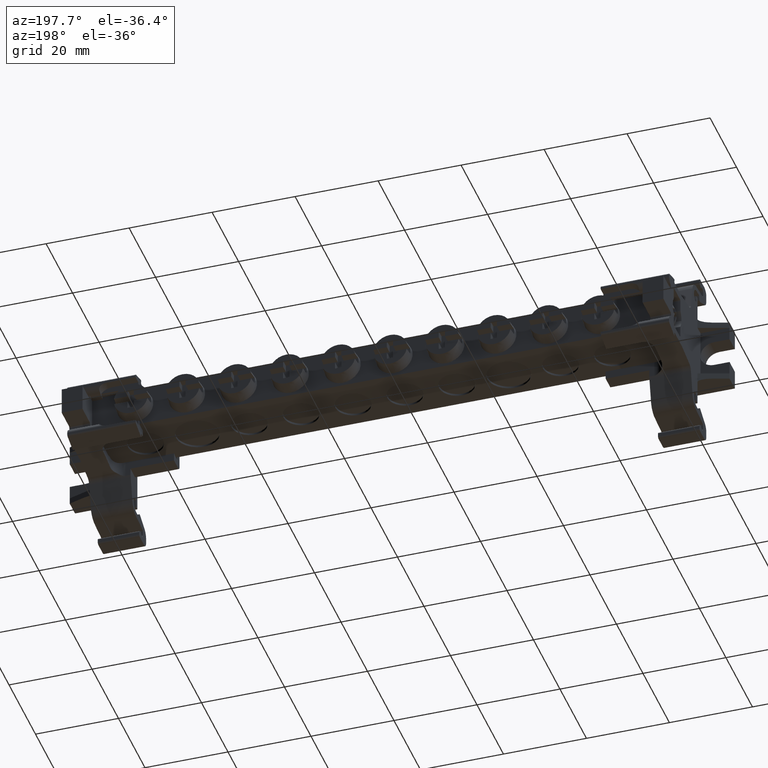
[diagram: clean part render]
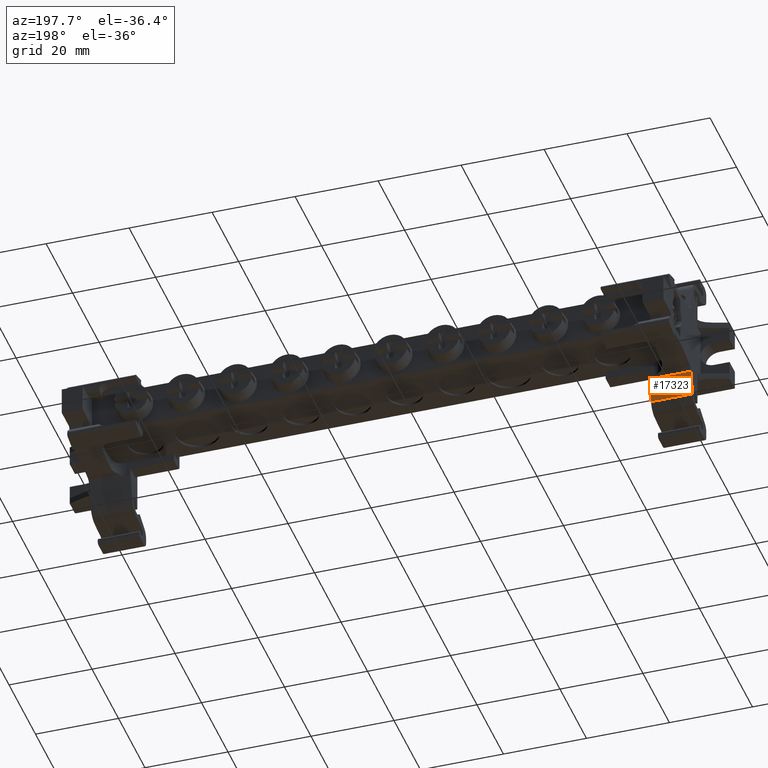
[diagram: same view with one face highlighted and labeled with its STEP entity id]
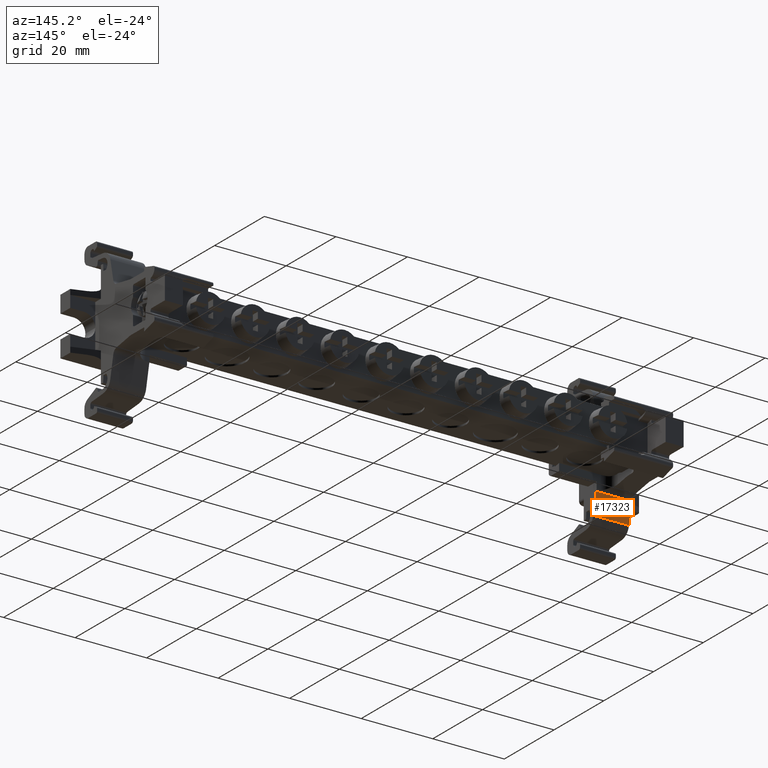
[diagram: same view with one face highlighted and labeled with its STEP entity id]
A machine part, auxiliary view. The second image highlights one B-rep face of the part: STEP entity #17323.
A second angle (auxiliary view) of the same face is appended — the face is thin or edge-on in the first view.
In plain terms, the highlighted planar face has unit normal (-0, -0.9792, 0.2031).
Its self-contained STEP definition (entity closure, byte-faithful):
#52 = AXIS2_PLACEMENT_3D ( 'NONE', #19060, #19080, #19047 ) ;
#1929 = LINE ( 'NONE', #1936, #10255 ) ;
#1936 = CARTESIAN_POINT ( 'NONE',  ( -89.95269769582409900, 47.79345559758388600, 23.06465006952839000 ) ) ;
#2044 = DIRECTION ( 'NONE',  ( 0.0000000000000000000, 0.2031293010247050000, 0.9791519223620074300 ) ) ;
#2049 = LINE ( 'NONE', #2055, #10214 ) ;
#2055 = CARTESIAN_POINT ( 'NONE',  ( -84.60348547699045700, 47.79345559758390000, 23.06465006952860400 ) ) ;
#2107 = DIRECTION ( 'NONE',  ( 1.000000000000000000, -6.873352069277834100E-015, 1.425906613307834500E-015 ) ) ;
#2233 = DIRECTION ( 'NONE',  ( -0.0000000000000000000, 0.2031293010246979800, 0.9791519223620088800 ) ) ;
#2291 = LINE ( 'NONE', #2325, #10420 ) ;
#2325 = CARTESIAN_POINT ( 'NONE',  ( -99.95269769582407100, 48.88003733662793600, 28.30234149671938900 ) ) ;
#5173 = CARTESIAN_POINT ( 'NONE',  ( -99.95269769582407100, 47.79345559758425600, 23.06465006952981200 ) ) ;
#5249 = CARTESIAN_POINT ( 'NONE',  ( -89.95269769582411400, 47.79345559758416300, 23.06465006952974800 ) ) ;
#6537 = VERTEX_POINT ( 'NONE', #5173 ) ;
#6586 = VERTEX_POINT ( 'NONE', #5249 ) ;
#8812 = ORIENTED_EDGE ( 'NONE', *, *, #13647, .F. ) ;
#8856 = ORIENTED_EDGE ( 'NONE', *, *, #14867, .F. ) ;
#8863 = ORIENTED_EDGE ( 'NONE', *, *, #13685, .T. ) ;
#8904 = ORIENTED_EDGE ( 'NONE', *, *, #13654, .F. ) ;
#9800 = VECTOR ( 'NONE', #20890, 1000.000000000000000 ) ;
#10214 = VECTOR ( 'NONE', #2107, 1000.000000000000000 ) ;
#10255 = VECTOR ( 'NONE', #2044, 1000.000000000000200 ) ;
#10420 = VECTOR ( 'NONE', #2233, 1000.000000000000100 ) ;
#12757 = EDGE_LOOP ( 'NONE', ( #8812, #8904, #8863, #8856 ) ) ;
#13647 = EDGE_CURVE ( 'NONE', #6586, #18536, #1929, .T. ) ;
#13654 = EDGE_CURVE ( 'NONE', #6537, #6586, #2049, .T. ) ;
#13685 = EDGE_CURVE ( 'NONE', #6537, #18472, #2291, .T. ) ;
#14867 = EDGE_CURVE ( 'NONE', #18536, #18472, #20923, .T. ) ;
#17323 = ADVANCED_FACE ( 'NONE', ( #19058 ), #19040, .F. ) ;
#17999 = CARTESIAN_POINT ( 'NONE',  ( -99.95269769582407100, 48.95920517769088300, 28.68395726251485900 ) ) ;
#18017 = CARTESIAN_POINT ( 'NONE',  ( -89.95269769582409900, 48.95920517769126000, 28.68395726251666700 ) ) ;
#18472 = VERTEX_POINT ( 'NONE', #17999 ) ;
#18536 = VERTEX_POINT ( 'NONE', #18017 ) ;
#19040 = PLANE ( 'NONE',  #52 ) ;
#19047 = DIRECTION ( 'NONE',  ( 0.0000000000000000000, -0.2031293010246979800, -0.9791519223620088800 ) ) ;
#19058 = FACE_OUTER_BOUND ( 'NONE', #12757, .T. ) ;
#19060 = CARTESIAN_POINT ( 'NONE',  ( -84.60348547699045700, 48.88003733662782900, 28.30234149671941100 ) ) ;
#19080 = DIRECTION ( 'NONE',  ( -7.019699305391998600E-015, -0.9791519223620089900, 0.2031293010246980100 ) ) ;
#20890 = DIRECTION ( 'NONE',  ( -1.000000000000000000, 6.873352069277834100E-015, -1.425906613307834500E-015 ) ) ;
#20909 = CARTESIAN_POINT ( 'NONE',  ( -84.60348547699045700, 48.95920517769116000, 28.68395726251669900 ) ) ;
#20923 = LINE ( 'NONE', #20909, #9800 ) ;